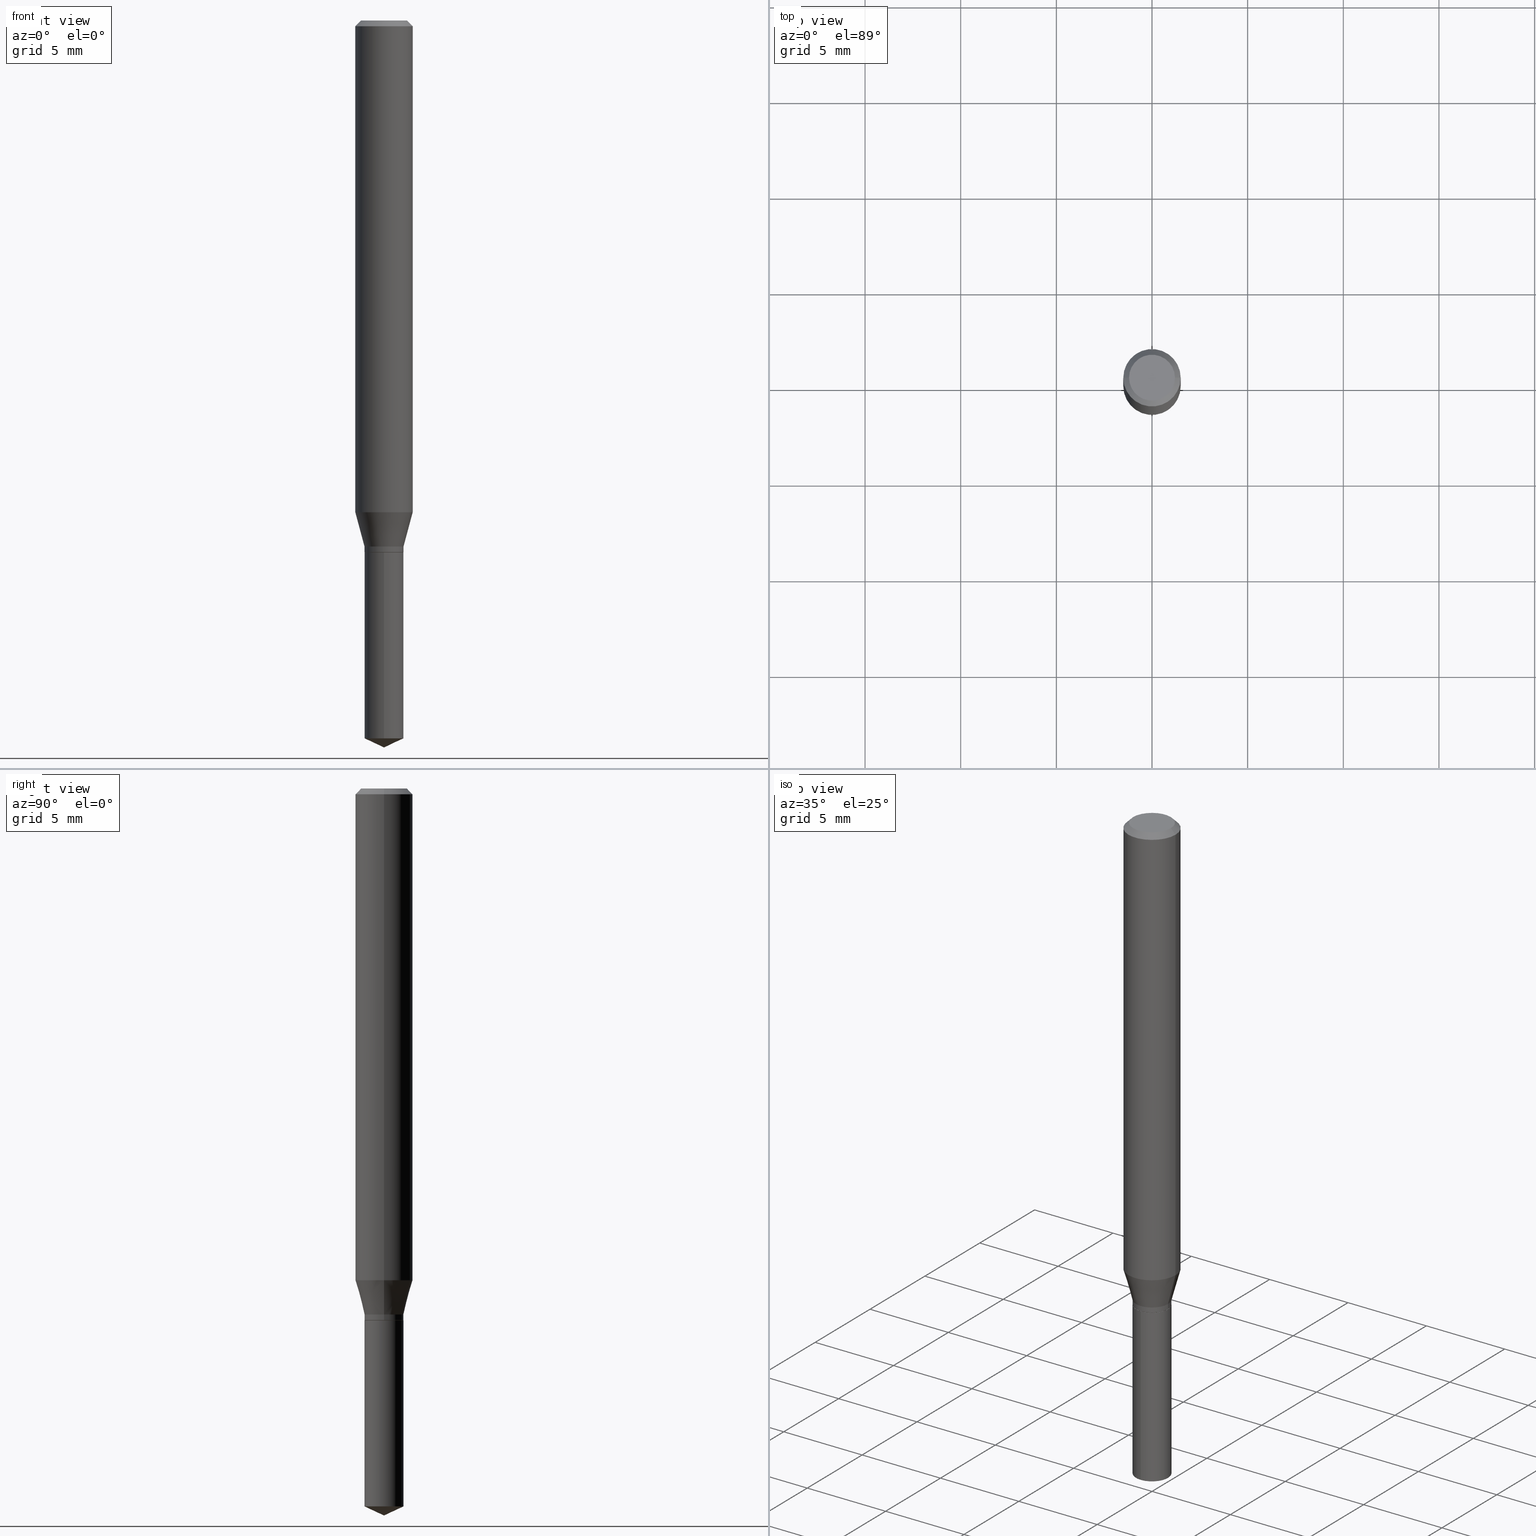
[diagram: canonical four-view strip — front | top / right | iso, engineering-drawing reading convention]
A machine part, canonical four-view strip (front | top / right | iso — engineering-drawing reading convention). The complete STEP part file that produces these views, byte-faithful:
ISO-10303-21;
HEADER;
FILE_DESCRIPTION (( 'STEP AP203' ),
    '1' );
FILE_NAME ('07605.STEP',
    '2024-04-23T23:38:56',
    ( '' ),
    ( '' ),
    'SwSTEP 2.0',
    'SolidWorks 2023',
    '' );
FILE_SCHEMA (( 'CONFIG_CONTROL_DESIGN' ));
ENDSEC;

DATA;
#1 = DIRECTION ( 'NONE',  ( -2.445458899330790108E-29, 3.491495526022433599E-15, 1.000000000000000000 ) ) ;
#2 = ORIENTED_EDGE ( 'NONE', *, *, #58, .F. ) ;
#3 = VECTOR ( 'NONE', #35, 39.37007874015748143 ) ;
#4 = VERTEX_POINT ( 'NONE', #478 ) ;
#5 = DATE_AND_TIME ( #266, #321 ) ;
#6 = DIRECTION ( 'NONE',  ( -2.445468806185136877E-29, 3.491481338843145188E-15, 1.000000000000000000 ) ) ;
#7 = CC_DESIGN_PERSON_AND_ORGANIZATION_ASSIGNMENT ( #230, #436, ( #270 ) ) ;
#8 = CARTESIAN_POINT ( 'NONE',  ( 2.676565608369631794E-29, -3.821426325363822773E-15, -1.094499999999999806 ) ) ;
#9 = CONICAL_SURFACE ( 'NONE', #459, 84.42940631927426409, 1.134464013796315562 ) ;
#10 = VECTOR ( 'NONE', #114, 39.37007874015748854 ) ;
#11 = DIRECTION ( 'NONE',  ( 1.000000000000000000, -6.982962677686266711E-15, 4.876176775795936353E-29 ) ) ;
#12 = DIRECTION ( 'NONE',  ( -2.445458899330790108E-29, 3.491495526022433205E-15, 1.000000000000000000 ) ) ;
#13 = ORIENTED_EDGE ( 'NONE', *, *, #217, .F. ) ;
#14 = PERSON_AND_ORGANIZATION ( #317, #251 ) ;
#15 = ORIENTED_EDGE ( 'NONE', *, *, #26, .F. ) ;
#16 = ORIENTED_EDGE ( 'NONE', *, *, #377, .F. ) ;
#17 =( GEOMETRIC_REPRESENTATION_CONTEXT ( 3 ) GLOBAL_UNCERTAINTY_ASSIGNED_CONTEXT ( ( #259 ) ) GLOBAL_UNIT_ASSIGNED_CONTEXT ( ( #297, #70, #376 ) ) REPRESENTATION_CONTEXT ( 'NONE', 'WORKASPACE' ) );
#18 = LINE ( 'NONE', #218, #158 ) ;
#19 = VERTEX_POINT ( 'NONE', #289 ) ;
#20 = DIRECTION ( 'NONE',  ( 1.000000000000000000, -6.982962677686266711E-15, 4.876185090822587894E-29 ) ) ;
#21 = DIMENSIONAL_EXPONENTS ( 1.000000000000000000, 0.000000000000000000, 0.000000000000000000, 0.000000000000000000, 0.000000000000000000, 0.000000000000000000, 0.000000000000000000 ) ;
#22 = CARTESIAN_POINT ( 'NONE',  ( 0.04014999999999999819, -4.059894500806808838E-15, -1.082500000000000018 ) ) ;
#23 = PERSON_AND_ORGANIZATION_ROLE ( 'classification_officer' ) ;
#24 = CARTESIAN_POINT ( 'NONE',  ( 2.852829084077163515E-16, 0.04014999999999484259, -1.477377747525077112 ) ) ;
#25 = LINE ( 'NONE', #103, #437 ) ;
#26 = EDGE_CURVE ( 'NONE', #128, #424, #334, .T. ) ;
#27 = AXIS2_PLACEMENT_3D ( 'NONE', #484, #490, #147 ) ;
#28 = DIRECTION ( 'NONE',  ( 1.000000000000000000, -6.982962677686265133E-15, 0.000000000000000000 ) ) ;
#29 = AXIS2_PLACEMENT_3D ( 'NONE', #435, #54, #252 ) ;
#30 = CARTESIAN_POINT ( 'NONE',  ( 0.05905000000000013016, -3.945598204735519774E-15, -1.011964239736947935 ) ) ;
#31 = PERSON_AND_ORGANIZATION ( #317, #251 ) ;
#32 = MANIFOLD_SOLID_BREP ( 'Body-Move/Copy2[2]', #384 ) ;
#33 = CARTESIAN_POINT ( 'NONE',  ( -9.261924752013118283E-28, 1.322368428517963298E-13, 37.87397874015748300 ) ) ;
#34 = DIRECTION ( 'NONE',  ( 0.000000000000000000, 0.000000000000000000, 1.000000000000000000 ) ) ;
#35 = DIRECTION ( 'NONE',  ( -2.445468806185136877E-29, 3.491481338843145188E-15, 1.000000000000000000 ) ) ;
#36 = LOCAL_TIME ( 19, 38, 56.00000000000000000, #402 ) ;
#37 = DIRECTION ( 'NONE',  ( -6.982962677686266711E-15, -1.000000000000000000, 3.520397390770457025E-15 ) ) ;
#38 = VERTEX_POINT ( 'NONE', #433 ) ;
#39 = CYLINDRICAL_SURFACE ( 'NONE', #257, 0.04014999999999999819 ) ;
#40 = EDGE_CURVE ( 'NONE', #322, #401, #52, .T. ) ;
#41 = CC_DESIGN_PERSON_AND_ORGANIZATION_ASSIGNMENT ( #14, #164, ( #360 ) ) ;
#42 = AXIS2_PLACEMENT_3D ( 'NONE', #348, #178, #83 ) ;
#43 = AXIS2_PLACEMENT_3D ( 'NONE', #483, #457, #80 ) ;
#44 = ORIENTED_EDGE ( 'NONE', *, *, #191, .T. ) ;
#45 = DIRECTION ( 'NONE',  ( 1.000000000000000000, -6.982962677686261189E-15, 0.000000000000000000 ) ) ;
#46 = CARTESIAN_POINT ( 'NONE',  ( 2.474726981251563190E-29, -3.533254258618144854E-15, -1.011964239736947935 ) ) ;
#47 = ORIENTED_EDGE ( 'NONE', *, *, #378, .F. ) ;
#48 = ADVANCED_FACE ( 'NONE', ( #95 ), #408, .F. ) ;
#49 = DIRECTION ( 'NONE',  ( 1.000000000000000000, -6.982962677686266711E-15, 4.876176775795936353E-29 ) ) ;
#50 = CONICAL_SURFACE ( 'NONE', #335, 0.03964999999999999775, 0.7853981633974141952 ) ;
#51 = EDGE_LOOP ( 'NONE', ( #116, #405, #206 ) ) ;
#52 = CIRCLE ( 'NONE', #29, 0.04014999999999999819 ) ;
#53 = DIRECTION ( 'NONE',  ( 1.000000000000000000, -6.982962677686261189E-15, 0.000000000000000000 ) ) ;
#54 = DIRECTION ( 'NONE',  ( -2.445468806185136597E-29, 3.491481338843145583E-15, 1.000000000000000000 ) ) ;
#55 = FACE_OUTER_BOUND ( 'NONE', #122, .T. ) ;
#56 = EDGE_CURVE ( 'NONE', #330, #38, #117, .T. ) ;
#57 = EDGE_LOOP ( 'NONE', ( #315, #197, #156, #13 ) ) ;
#58 = EDGE_CURVE ( 'NONE', #194, #424, #25, .T. ) ;
#59 = CARTESIAN_POINT ( 'NONE',  ( 0.03964999999999999775, -4.098300795534082706E-15, -1.094499999999999806 ) ) ;
#60 = CARTESIAN_POINT ( 'NONE',  ( 0.04014999999999999819, -2.803659515091035804E-16, 1.957784975482067798E-30 ) ) ;
#61 = CC_DESIGN_PERSON_AND_ORGANIZATION_ASSIGNMENT ( #31, #336, ( #292 ) ) ;
#62 = EDGE_CURVE ( 'NONE', #194, #306, #210, .T. ) ;
#63 = EDGE_LOOP ( 'NONE', ( #241, #247, #190, #232 ) ) ;
#64 = DESIGN_CONTEXT ( 'detailed design', #226, 'design' ) ;
#65 = CONICAL_SURFACE ( 'NONE', #42, 0.04014999999999999819, 0.2617993877991501850 ) ;
#66 = FACE_OUTER_BOUND ( 'NONE', #126, .T. ) ;
#67 = PRODUCT_RELATED_PRODUCT_CATEGORY ( 'detail', '', ( #360 ) ) ;
#68 = CARTESIAN_POINT ( 'NONE',  ( 2.676565608369631794E-29, -3.821426325363822773E-15, -1.094499999999999806 ) ) ;
#69 = CYLINDRICAL_SURFACE ( 'NONE', #399, 0.05905000000000006771 ) ;
#70 =( NAMED_UNIT ( * ) PLANE_ANGLE_UNIT ( ) SI_UNIT ( $, .RADIAN. ) );
#71 = FACE_OUTER_BOUND ( 'NONE', #100, .T. ) ;
#72 = AXIS2_PLACEMENT_3D ( 'NONE', #345, #386, #422 ) ;
#73 = CONICAL_SURFACE ( 'NONE', #105, 0.05905000000000000526, 0.7853981633974452814 ) ;
#74 = CC_DESIGN_APPROVAL ( #185, ( #292 ) ) ;
#75 = CYLINDRICAL_SURFACE ( 'NONE', #389, 0.04014999999999999819 ) ;
#76 = ADVANCED_BREP_SHAPE_REPRESENTATION ( '07605', ( #188, #32, #449 ), #17 ) ;
#77 = LINE ( 'NONE', #458, #299 ) ;
#78 = ADVANCED_FACE ( 'NONE', ( #249 ), #69, .T. ) ;
#79 = DIRECTION ( 'NONE',  ( -2.445458899330790108E-29, 3.491495526022433205E-15, 1.000000000000000000 ) ) ;
#80 = DIRECTION ( 'NONE',  ( -1.000000000000000000, 6.982962677686267499E-15, 0.000000000000000000 ) ) ;
#81 = AXIS2_PLACEMENT_3D ( 'NONE', #285, #367, #480 ) ;
#82 = CIRCLE ( 'NONE', #27, 0.04014999999999999819 ) ;
#83 = DIRECTION ( 'NONE',  ( 1.000000000000000000, -6.982962677686261189E-15, 0.000000000000000000 ) ) ;
#84 = LOCAL_TIME ( 19, 38, 56.00000000000000000, #209 ) ;
#85 = CARTESIAN_POINT ( 'NONE',  ( 8.265746106709734507E-48, -1.180129479067563789E-33, -3.380025165646692144E-19 ) ) ;
#86 = ORIENTED_EDGE ( 'NONE', *, *, #138, .F. ) ;
#87 = CARTESIAN_POINT ( 'NONE',  ( 2.888098660104665956E-31, -4.123439461173782728E-17, -0.01181000000000007912 ) ) ;
#88 = EDGE_CURVE ( 'NONE', #470, #104, #175, .T. ) ;
#89 = ORIENTED_EDGE ( 'NONE', *, *, #349, .T. ) ;
#90 = ORIENTED_EDGE ( 'NONE', *, *, #255, .F. ) ;
#91 = APPROVAL_DATE_TIME ( #5, #426 ) ;
#92 = VECTOR ( 'NONE', #415, 39.37007874015748854 ) ;
#93 = ORIENTED_EDGE ( 'NONE', *, *, #138, .T. ) ;
#94 = ORIENTED_EDGE ( 'NONE', *, *, #293, .F. ) ;
#95 = FACE_OUTER_BOUND ( 'NONE', #468, .T. ) ;
#96 = DIRECTION ( 'NONE',  ( 2.445458899330789267E-29, -3.491495526022433599E-15, -1.000000000000000000 ) ) ;
#97 = VECTOR ( 'NONE', #338, 39.37007874015748854 ) ;
#98 = CARTESIAN_POINT ( 'NONE',  ( 2.676565608369631794E-29, -3.821426325363822773E-15, -1.094499999999999806 ) ) ;
#99 = ADVANCED_FACE ( 'NONE', ( #66 ), #207, .T. ) ;
#100 = EDGE_LOOP ( 'NONE', ( #271, #278, #427 ) ) ;
#101 = DIRECTION ( 'NONE',  ( -1.000000000000000000, 6.982962677686265922E-15, -4.876176775795935793E-29 ) ) ;
#102 = VERTEX_POINT ( 'NONE', #22 ) ;
#103 = CARTESIAN_POINT ( 'NONE',  ( 0.05905000000000006771, -4.123439461173745257E-16, 2.879382386107503723E-30 ) ) ;
#104 = VERTEX_POINT ( 'NONE', #24 ) ;
#105 = AXIS2_PLACEMENT_3D ( 'NONE', #87, #374, #454 ) ;
#106 = APPROVAL_ROLE ( '' ) ;
#107 = DIRECTION ( 'NONE',  ( -2.445458899330790108E-29, 3.491495526022433205E-15, 1.000000000000000000 ) ) ;
#108 = CARTESIAN_POINT ( 'NONE',  ( 2.474726981251563190E-29, -3.533254258618144854E-15, -1.011964239736947935 ) ) ;
#109 = APPROVAL_DATE_TIME ( #380, #340 ) ;
#110 = CARTESIAN_POINT ( 'NONE',  ( 0.000000000000000000, 0.000000000000000000, 0.000000000000000000 ) ) ;
#111 = CARTESIAN_POINT ( 'NONE',  ( 0.000000000000000000, 0.000000000000000000, 0.000000000000000000 ) ) ;
#112 = CARTESIAN_POINT ( 'NONE',  ( 2.888098660104665956E-31, -4.123439461173782728E-17, -0.01181000000000007912 ) ) ;
#113 = LINE ( 'NONE', #192, #250 ) ;
#114 = DIRECTION ( 'NONE',  ( 6.439704144417028775E-15, 0.9063077870366519351, 0.4226182617406950559 ) ) ;
#115 = DIRECTION ( 'NONE',  ( -6.982962677686266711E-15, -1.000000000000000000, 3.402052295970439836E-15 ) ) ;
#116 = ORIENTED_EDGE ( 'NONE', *, *, #269, .F. ) ;
#117 = CIRCLE ( 'NONE', #159, 0.04014999999999999819 ) ;
#118 = VECTOR ( 'NONE', #170, 39.37007874015748143 ) ;
#119 = LINE ( 'NONE', #261, #10 ) ;
#120 = CC_DESIGN_APPROVAL ( #426, ( #270 ) ) ;
#121 = ORIENTED_EDGE ( 'NONE', *, *, #349, .F. ) ;
#122 = EDGE_LOOP ( 'NONE', ( #461, #350, #169, #358 ) ) ;
#123 = ORIENTED_EDGE ( 'NONE', *, *, #462, .T. ) ;
#124 = APPROVAL_PERSON_ORGANIZATION ( #450, #340, #442 ) ;
#125 = CARTESIAN_POINT ( 'NONE',  ( 3.612877403410558045E-29, -5.158242267861175196E-15, -1.477377747525076890 ) ) ;
#126 = EDGE_LOOP ( 'NONE', ( #473, #123, #354, #86 ) ) ;
#127 = DIRECTION ( 'NONE',  ( -2.445468806185136597E-29, 3.491481338843145583E-15, 1.000000000000000000 ) ) ;
#128 = VERTEX_POINT ( 'NONE', #193 ) ;
#129 = DATE_AND_TIME ( #469, #36 ) ;
#130 = ORIENTED_EDGE ( 'NONE', *, *, #56, .T. ) ;
#131 = CARTESIAN_POINT ( 'NONE',  ( 8.265746106709734507E-48, -1.180129479067563789E-33, -3.380025165646692144E-19 ) ) ;
#132 = ADVANCED_FACE ( 'NONE', ( #71 ), #9, .T. ) ;
#133 = CONICAL_SURFACE ( 'NONE', #410, 84.42940631927426409, 1.134464013796315562 ) ;
#134 = AXIS2_PLACEMENT_3D ( 'NONE', #108, #448, #486 ) ;
#135 = EDGE_LOOP ( 'NONE', ( #121, #229, #236, #423 ) ) ;
#136 = CC_DESIGN_SECURITY_CLASSIFICATION ( #352, ( #292 ) ) ;
#137 = DIRECTION ( 'NONE',  ( 2.438088387897960049E-29, -3.491481338843145188E-15, -1.000000000000000000 ) ) ;
#138 = EDGE_CURVE ( 'NONE', #38, #330, #395, .T. ) ;
#139 = PRODUCT_DEFINITION_SHAPE ( 'NONE', 'NONE',  #270 ) ;
#140 = EDGE_LOOP ( 'NONE', ( #202, #456, #460, #268 ) ) ;
#141 = CARTESIAN_POINT ( 'NONE',  ( 2.888098660104665956E-31, -4.123439461173782728E-17, -0.01181000000000007912 ) ) ;
#142 = DIRECTION ( 'NONE',  ( -2.445458899330790108E-29, 3.491495526022433205E-15, 1.000000000000000000 ) ) ;
#143 = DIRECTION ( 'NONE',  ( 1.000000000000000000, -6.982962677686267499E-15, 0.000000000000000000 ) ) ;
#144 = FACE_OUTER_BOUND ( 'NONE', #366, .T. ) ;
#145 = DIRECTION ( 'NONE',  ( -6.982962677686266711E-15, -1.000000000000000000, 6.804104591940879672E-15 ) ) ;
#146 = LOCAL_TIME ( 19, 38, 56.00000000000000000, #294 ) ;
#147 = DIRECTION ( 'NONE',  ( 1.000000000000000000, -6.982962677686261189E-15, 0.000000000000000000 ) ) ;
#148 = DIRECTION ( 'NONE',  ( -0.7071067811865453523, 2.468850131082234184E-15, -0.7071067811865496822 ) ) ;
#149 = VERTEX_POINT ( 'NONE', #160 ) ;
#150 = LINE ( 'NONE', #260, #152 ) ;
#151 = VERTEX_POINT ( 'NONE', #246 ) ;
#152 = VECTOR ( 'NONE', #414, 39.37007874015748143 ) ;
#153 = EDGE_LOOP ( 'NONE', ( #400, #44, #163, #15 ) ) ;
#154 = EDGE_CURVE ( 'NONE', #322, #102, #404, .T. ) ;
#155 = ORIENTED_EDGE ( 'NONE', *, *, #342, .T. ) ;
#156 = ORIENTED_EDGE ( 'NONE', *, *, #154, .T. ) ;
#157 = DIRECTION ( 'NONE',  ( 1.000000000000000000, -6.982962677686266711E-15, 4.876185090822587894E-29 ) ) ;
#158 = VECTOR ( 'NONE', #273, 39.37007874015748143 ) ;
#159 = AXIS2_PLACEMENT_3D ( 'NONE', #68, #12, #161 ) ;
#160 = CARTESIAN_POINT ( 'NONE',  ( -0.03964999999999999775, -3.537046903460831717E-15, -1.094499999999999806 ) ) ;
#161 = DIRECTION ( 'NONE',  ( -6.982962677686266711E-15, -1.000000000000000000, 3.402052295970439836E-15 ) ) ;
#162 = EDGE_CURVE ( 'NONE', #149, #434, #279, .T. ) ;
#163 = ORIENTED_EDGE ( 'NONE', *, *, #58, .T. ) ;
#164 = PERSON_AND_ORGANIZATION_ROLE ( 'design_owner' ) ;
#165 = DIRECTION ( 'NONE',  ( -2.445468806185136597E-29, 3.491481338843145583E-15, 1.000000000000000000 ) ) ;
#166 = VECTOR ( 'NONE', #298, 39.37007874015748143 ) ;
#167 = ORIENTED_EDGE ( 'NONE', *, *, #287, .T. ) ;
#168 = CARTESIAN_POINT ( 'NONE',  ( -0.04014999999999999819, 2.852829084076802118E-16, -1.974952438737344486E-30 ) ) ;
#169 = ORIENTED_EDGE ( 'NONE', *, *, #233, .T. ) ;
#170 = DIRECTION ( 'NONE',  ( -2.445468806185136877E-29, 3.491481338843145188E-15, 1.000000000000000000 ) ) ;
#171 = APPROVAL_STATUS ( 'not_yet_approved' ) ;
#172 = CLOSED_SHELL ( 'NONE', ( #328, #248, #132, #99, #369 ) ) ;
#173 = EDGE_CURVE ( 'NONE', #102, #4, #82, .T. ) ;
#174 = PERSON_AND_ORGANIZATION ( #317, #251 ) ;
#175 = CIRCLE ( 'NONE', #314, 0.04014999999999999819 ) ;
#176 = DIRECTION ( 'NONE',  ( -2.445458899330790108E-29, 3.491495526022433205E-15, 1.000000000000000000 ) ) ;
#177 = ADVANCED_FACE ( 'NONE', ( #489 ), #73, .T. ) ;
#178 = DIRECTION ( 'NONE',  ( -2.445468806185136597E-29, 3.491481338843145583E-15, 1.000000000000000000 ) ) ;
#179 = LINE ( 'NONE', #343, #166 ) ;
#180 = FACE_OUTER_BOUND ( 'NONE', #362, .T. ) ;
#181 = CIRCLE ( 'NONE', #465, 0.04014999999999999819 ) ;
#182 = CARTESIAN_POINT ( 'NONE',  ( 3.612877403410558045E-29, -5.158242267861175196E-15, -1.477377747525076890 ) ) ;
#183 = DIRECTION ( 'NONE',  ( -2.445468806185136597E-29, 3.491481338843145583E-15, 1.000000000000000000 ) ) ;
#184 = CARTESIAN_POINT ( 'NONE',  ( 2.676565608369631794E-29, -3.821426325363822773E-15, -1.094499999999999806 ) ) ;
#185 = APPROVAL ( #344, 'UNSPECIFIED' ) ;
#186 = CARTESIAN_POINT ( 'NONE',  ( -0.04724000000000000421, 3.504923541997677355E-16, -3.380025165670481712E-19 ) ) ;
#187 = DIRECTION ( 'NONE',  ( -6.328713451373374112E-15, -0.9063077870366490485, 0.4226182617407013287 ) ) ;
#188 = MANIFOLD_SOLID_BREP ( 'Body-Move/Copy2[1]', #172 ) ;
#189 = ORIENTED_EDGE ( 'NONE', *, *, #40, .F. ) ;
#190 = ORIENTED_EDGE ( 'NONE', *, *, #293, .T. ) ;
#191 = EDGE_CURVE ( 'NONE', #306, #194, #371, .T. ) ;
#192 = CARTESIAN_POINT ( 'NONE',  ( -0.04014999999999999819, -3.494245640890025145E-15, -1.082500000000000018 ) ) ;
#193 = CARTESIAN_POINT ( 'NONE',  ( -0.05905000000000000526, -1.367668841148601207E-15, -0.01181000000000007912 ) ) ;
#194 = VERTEX_POINT ( 'NONE', #30 ) ;
#195 = PLANE ( 'NONE',  #364 ) ;
#196 = AXIS2_PLACEMENT_3D ( 'NONE', #479, #137, #101 ) ;
#197 = ORIENTED_EDGE ( 'NONE', *, *, #332, .T. ) ;
#198 = CARTESIAN_POINT ( 'NONE',  ( 2.647219982695410164E-29, -3.779528549297705110E-15, -1.082500000000000018 ) ) ;
#199 = ORIENTED_EDGE ( 'NONE', *, *, #377, .T. ) ;
#200 = CARTESIAN_POINT ( 'NONE',  ( 0.05905000000000000526, -4.535783407291119586E-16, -0.01181000000000007912 ) ) ;
#201 = APPLICATION_CONTEXT ( 'configuration controlled 3d designs of mechanical parts and assemblies' ) ;
#202 = ORIENTED_EDGE ( 'NONE', *, *, #40, .T. ) ;
#203 = ADVANCED_FACE ( 'NONE', ( #216 ), #39, .T. ) ;
#204 = LINE ( 'NONE', #168, #118 ) ;
#205 = CONICAL_SURFACE ( 'NONE', #228, 0.03964999999999999775, 0.7853981633974141952 ) ;
#206 = ORIENTED_EDGE ( 'NONE', *, *, #88, .F. ) ;
#207 = CYLINDRICAL_SURFACE ( 'NONE', #81, 0.04014999999999999819 ) ;
#208 = DIRECTION ( 'NONE',  ( -6.982962677686266711E-15, -1.000000000000000000, 6.804104591940879672E-15 ) ) ;
#209 = COORDINATED_UNIVERSAL_TIME_OFFSET ( 5, 0, .BEHIND. ) ;
#210 = CIRCLE ( 'NONE', #309, 0.05905000000000013016 ) ;
#211 = EDGE_CURVE ( 'NONE', #151, #104, #119, .T. ) ;
#212 = APPROVAL_DATE_TIME ( #453, #185 ) ;
#213 = CIRCLE ( 'NONE', #398, 0.04014999999999999819 ) ;
#214 = CARTESIAN_POINT ( 'NONE',  ( -0.03964999999999999775, -3.539696130634942918E-15, -1.094499999999999806 ) ) ;
#215 = FACE_OUTER_BOUND ( 'NONE', #51, .T. ) ;
#216 = FACE_OUTER_BOUND ( 'NONE', #140, .T. ) ;
#217 = EDGE_CURVE ( 'NONE', #4, #102, #238, .T. ) ;
#218 = CARTESIAN_POINT ( 'NONE',  ( 0.05905000000000000526, -4.463468013801467941E-16, -0.01181000000000007912 ) ) ;
#219 = LINE ( 'NONE', #383, #412 ) ;
#220 = CC_DESIGN_PERSON_AND_ORGANIZATION_ASSIGNMENT ( #300, #23, ( #352 ) ) ;
#221 = AXIS2_PLACEMENT_3D ( 'NONE', #85, #303, #157 ) ;
#222 = CARTESIAN_POINT ( 'NONE',  ( 2.852829084077068851E-16, 0.04014999999999617486, -1.094500000000000028 ) ) ;
#223 = DIRECTION ( 'NONE',  ( 1.000000000000000000, -6.982962677686261189E-15, 0.000000000000000000 ) ) ;
#224 = DIRECTION ( 'NONE',  ( 1.000000000000000000, -6.982962677686266711E-15, 4.876176775795935232E-29 ) ) ;
#225 = ORIENTED_EDGE ( 'NONE', *, *, #288, .T. ) ;
#226 = APPLICATION_CONTEXT ( 'configuration controlled 3d designs of mechanical parts and assemblies' ) ;
#227 = ORIENTED_EDGE ( 'NONE', *, *, #443, .T. ) ;
#228 = AXIS2_PLACEMENT_3D ( 'NONE', #184, #231, #223 ) ;
#229 = ORIENTED_EDGE ( 'NONE', *, *, #316, .T. ) ;
#230 = PERSON_AND_ORGANIZATION ( #317, #251 ) ;
#231 = DIRECTION ( 'NONE',  ( -2.445468806185136597E-29, 3.491481338843145583E-15, 1.000000000000000000 ) ) ;
#232 = ORIENTED_EDGE ( 'NONE', *, *, #191, .F. ) ;
#233 = EDGE_CURVE ( 'NONE', #434, #322, #267, .T. ) ;
#234 = COORDINATED_UNIVERSAL_TIME_OFFSET ( 5, 0, .BEHIND. ) ;
#235 = CARTESIAN_POINT ( 'NONE',  ( -2.803659515090768085E-16, -0.04015000000000382152, -1.094499999999999806 ) ) ;
#236 = ORIENTED_EDGE ( 'NONE', *, *, #255, .T. ) ;
#237 = DIRECTION ( 'NONE',  ( 6.982962677686265922E-15, 1.000000000000000000, -3.491495526022433599E-15 ) ) ;
#238 = CIRCLE ( 'NONE', #327, 0.04014999999999999819 ) ;
#239 = MECHANICAL_CONTEXT ( 'NONE', #201, 'mechanical' ) ;
#240 = LOCAL_TIME ( 19, 38, 56.00000000000000000, #333 ) ;
#241 = ORIENTED_EDGE ( 'NONE', *, *, #342, .F. ) ;
#242 = DIRECTION ( 'NONE',  ( -2.445468806185136597E-29, 3.491481338843145583E-15, 1.000000000000000000 ) ) ;
#243 = ADVANCED_FACE ( 'NONE', ( #451 ), #75, .T. ) ;
#244 = DIRECTION ( 'NONE',  ( -2.438088387897960049E-29, 3.491481338843145188E-15, 1.000000000000000000 ) ) ;
#245 = DIRECTION ( 'NONE',  ( -2.445468806185136597E-29, 3.491481338843145583E-15, 1.000000000000000000 ) ) ;
#246 = CARTESIAN_POINT ( 'NONE',  ( 3.658651059288794515E-29, -5.223626456482161457E-15, -1.496099999999999985 ) ) ;
#247 = ORIENTED_EDGE ( 'NONE', *, *, #217, .T. ) ;
#248 = ADVANCED_FACE ( 'NONE', ( #215 ), #133, .T. ) ;
#249 = FACE_OUTER_BOUND ( 'NONE', #153, .T. ) ;
#250 = VECTOR ( 'NONE', #393, 39.37007874015748143 ) ;
#251 = ORGANIZATION ( 'UNSPECIFIED', 'UNSPECIFIED', '' ) ;
#252 = DIRECTION ( 'NONE',  ( 1.000000000000000000, -6.982962677686261189E-15, 0.000000000000000000 ) ) ;
#253 = DIRECTION ( 'NONE',  ( -2.445468806185136597E-29, 3.491481338843145583E-15, 1.000000000000000000 ) ) ;
#254 = FACE_OUTER_BOUND ( 'NONE', #63, .T. ) ;
#255 = EDGE_CURVE ( 'NONE', #424, #128, #481, .T. ) ;
#256 = CARTESIAN_POINT ( 'NONE',  ( 2.647219982695410164E-29, -3.779528549297705110E-15, -1.082500000000000018 ) ) ;
#257 = AXIS2_PLACEMENT_3D ( 'NONE', #302, #183, #224 ) ;
#258 = SHAPE_DEFINITION_REPRESENTATION ( #139, #76 ) ;
#259 = UNCERTAINTY_MEASURE_WITH_UNIT (LENGTH_MEASURE( 1.000000000000000082E-05 ), #297, 'distance_accuracy_value', 'NONE');
#260 = CARTESIAN_POINT ( 'NONE',  ( -2.803659515090768085E-16, -0.04015000000000382152, -1.094499999999999806 ) ) ;
#261 = CARTESIAN_POINT ( 'NONE',  ( 3.658672935554494692E-29, -5.223595400746700193E-15, -1.496099999999999985 ) ) ;
#262 = DIRECTION ( 'NONE',  ( -2.445468806185136597E-29, 3.491481338843145583E-15, 1.000000000000000000 ) ) ;
#263 = CARTESIAN_POINT ( 'NONE',  ( 2.675342873966538993E-29, -3.819680584694400481E-15, -1.093999999999999861 ) ) ;
#264 = ORIENTED_EDGE ( 'NONE', *, *, #62, .T. ) ;
#265 = AXIS2_PLACEMENT_3D ( 'NONE', #397, #245, #440 ) ;
#266 = CALENDAR_DATE ( 2024, 23, 4 ) ;
#267 = LINE ( 'NONE', #347, #92 ) ;
#268 = ORIENTED_EDGE ( 'NONE', *, *, #154, .F. ) ;
#269 = EDGE_CURVE ( 'NONE', #151, #470, #219, .T. ) ;
#270 = PRODUCT_DEFINITION ( 'UNKNOWN', '', #292, #64 ) ;
#271 = ORIENTED_EDGE ( 'NONE', *, *, #211, .F. ) ;
#272 = AXIS2_PLACEMENT_3D ( 'NONE', #466, #127, #49 ) ;
#273 = DIRECTION ( 'NONE',  ( 0.7071067811865453523, -7.319954787623248157E-15, -0.7071067811865496822 ) ) ;
#274 = CARTESIAN_POINT ( 'NONE',  ( 0.000000000000000000, 0.000000000000000000, 0.000000000000000000 ) ) ;
#275 = DIRECTION ( 'NONE',  ( -2.445458899330790108E-29, 3.491495526022433205E-15, 1.000000000000000000 ) ) ;
#276 = VERTEX_POINT ( 'NONE', #186 ) ;
#277 = FACE_OUTER_BOUND ( 'NONE', #388, .T. ) ;
#278 = ORIENTED_EDGE ( 'NONE', *, *, #269, .T. ) ;
#279 = CIRCLE ( 'NONE', #72, 0.03964999999999999775 ) ;
#280 = ADVANCED_FACE ( 'NONE', ( #144 ), #65, .T. ) ;
#281 = AXIS2_PLACEMENT_3D ( 'NONE', #198, #253, #324 ) ;
#282 = APPROVAL_STATUS ( 'not_yet_approved' ) ;
#283 = ORIENTED_EDGE ( 'NONE', *, *, #26, .T. ) ;
#284 = DIRECTION ( 'NONE',  ( -2.445468806185136597E-29, 3.491481338843145583E-15, 1.000000000000000000 ) ) ;
#285 = CARTESIAN_POINT ( 'NONE',  ( 2.676565608369631794E-29, -3.821426325363822773E-15, -1.094499999999999806 ) ) ;
#286 = ORIENTED_EDGE ( 'NONE', *, *, #316, .F. ) ;
#287 = EDGE_CURVE ( 'NONE', #276, #128, #296, .T. ) ;
#288 = EDGE_CURVE ( 'NONE', #104, #38, #305, .T. ) ;
#289 = CARTESIAN_POINT ( 'NONE',  ( 0.04724000000000000421, -3.852183633974369838E-16, -3.380025165621689721E-19 ) ) ;
#290 = DIRECTION ( 'NONE',  ( -6.982962677686266711E-15, -1.000000000000000000, 3.520397390770457025E-15 ) ) ;
#291 = AXIS2_PLACEMENT_3D ( 'NONE', #8, #275, #115 ) ;
#292 = PRODUCT_DEFINITION_FORMATION_WITH_SPECIFIED_SOURCE ( 'ANY', '', #360, .NOT_KNOWN. ) ;
#293 = EDGE_CURVE ( 'NONE', #102, #194, #179, .T. ) ;
#294 = COORDINATED_UNIVERSAL_TIME_OFFSET ( 5, 0, .BEHIND. ) ;
#295 = PERSON_AND_ORGANIZATION ( #317, #251 ) ;
#296 = LINE ( 'NONE', #444, #406 ) ;
#297 =( CONVERSION_BASED_UNIT ( 'INCH', #382 ) LENGTH_UNIT ( ) NAMED_UNIT ( #21 ) );
#298 = DIRECTION ( 'NONE',  ( 0.2588190451025214611, 1.565188264969620982E-15, 0.9659258262890679791 ) ) ;
#299 = VECTOR ( 'NONE', #6, 39.37007874015748143 ) ;
#300 = PERSON_AND_ORGANIZATION ( #317, #251 ) ;
#301 = EDGE_CURVE ( 'NONE', #470, #330, #150, .T. ) ;
#302 = CARTESIAN_POINT ( 'NONE',  ( 0.000000000000000000, 0.000000000000000000, 0.000000000000000000 ) ) ;
#303 = DIRECTION ( 'NONE',  ( -2.445468806185136597E-29, 3.491481338843145583E-15, 1.000000000000000000 ) ) ;
#304 = CC_DESIGN_DATE_AND_TIME_ASSIGNMENT ( #129, #438, ( #270 ) ) ;
#305 = LINE ( 'NONE', #222, #474 ) ;
#306 = VERTEX_POINT ( 'NONE', #308 ) ;
#307 = CARTESIAN_POINT ( 'NONE',  ( -2.803659515090673914E-16, -0.04015000000000516073, -1.477377747525076446 ) ) ;
#308 = CARTESIAN_POINT ( 'NONE',  ( -0.05905000000000013016, -3.113678773151804967E-15, -1.011964239736947935 ) ) ;
#309 = AXIS2_PLACEMENT_3D ( 'NONE', #46, #482, #28 ) ;
#310 = EDGE_LOOP ( 'NONE', ( #130, #93 ) ) ;
#311 = AXIS2_PLACEMENT_3D ( 'NONE', #131, #242, #20 ) ;
#312 = CC_DESIGN_APPROVAL ( #340, ( #352 ) ) ;
#313 = EDGE_CURVE ( 'NONE', #306, #128, #77, .T. ) ;
#314 = AXIS2_PLACEMENT_3D ( 'NONE', #125, #176, #208 ) ;
#315 = ORIENTED_EDGE ( 'NONE', *, *, #439, .F. ) ;
#316 = EDGE_CURVE ( 'NONE', #19, #424, #18, .T. ) ;
#317 = PERSON ( 'UNSPECIFIED', 'UNSPECIFIED', 'UNSPECIFIED', ('UNSPECIFIED'), ('UNSPECIFIED'), ('UNSPECIFIED') ) ;
#318 = ADVANCED_FACE ( 'NONE', ( #425 ), #205, .T. ) ;
#319 = EDGE_LOOP ( 'NONE', ( #477, #89 ) ) ;
#320 = CYLINDRICAL_SURFACE ( 'NONE', #272, 0.05905000000000006771 ) ;
#321 = LOCAL_TIME ( 19, 38, 56.00000000000000000, #234 ) ;
#322 = VERTEX_POINT ( 'NONE', #455 ) ;
#323 = ORIENTED_EDGE ( 'NONE', *, *, #313, .T. ) ;
#324 = DIRECTION ( 'NONE',  ( 1.000000000000000000, -6.982962677686261189E-15, 0.000000000000000000 ) ) ;
#325 = APPLICATION_PROTOCOL_DEFINITION ( 'international standard', 'config_control_design', 1994, #226 ) ;
#326 = ORIENTED_EDGE ( 'NONE', *, *, #62, .F. ) ;
#327 = AXIS2_PLACEMENT_3D ( 'NONE', #256, #262, #411 ) ;
#328 = ADVANCED_FACE ( 'NONE', ( #277 ), #452, .T. ) ;
#329 = ORIENTED_EDGE ( 'NONE', *, *, #301, .F. ) ;
#330 = VERTEX_POINT ( 'NONE', #235 ) ;
#331 = LINE ( 'NONE', #214, #97 ) ;
#332 = EDGE_CURVE ( 'NONE', #401, #322, #181, .T. ) ;
#333 = COORDINATED_UNIVERSAL_TIME_OFFSET ( 5, 0, .BEHIND. ) ;
#334 = CIRCLE ( 'NONE', #385, 0.05905000000000000526 ) ;
#335 = AXIS2_PLACEMENT_3D ( 'NONE', #403, #284, #53 ) ;
#336 = PERSON_AND_ORGANIZATION_ROLE ( 'creator' ) ;
#337 = AXIS2_PLACEMENT_3D ( 'NONE', #98, #244, #356 ) ;
#338 = DIRECTION ( 'NONE',  ( -0.7071067811865232589, 7.493145998870265808E-15, 0.7071067811865715536 ) ) ;
#339 = DIRECTION ( 'NONE',  ( -2.445468806185136877E-29, 3.491481338843145188E-15, 1.000000000000000000 ) ) ;
#340 = APPROVAL ( #171, 'UNSPECIFIED' ) ;
#341 = CALENDAR_DATE ( 2024, 23, 4 ) ;
#342 = EDGE_CURVE ( 'NONE', #4, #306, #113, .T. ) ;
#343 = CARTESIAN_POINT ( 'NONE',  ( 0.04014999999999999819, -4.059894500806808838E-15, -1.082500000000000018 ) ) ;
#344 = APPROVAL_STATUS ( 'not_yet_approved' ) ;
#345 = CARTESIAN_POINT ( 'NONE',  ( 2.676565608369631794E-29, -3.821426325363822773E-15, -1.094499999999999806 ) ) ;
#346 = CIRCLE ( 'NONE', #311, 0.04724000000000000421 ) ;
#347 = CARTESIAN_POINT ( 'NONE',  ( 0.03964999999999999775, -4.098300795534082706E-15, -1.094499999999999806 ) ) ;
#348 = CARTESIAN_POINT ( 'NONE',  ( 2.647219982695410164E-29, -3.779528549297705110E-15, -1.082500000000000018 ) ) ;
#349 = EDGE_CURVE ( 'NONE', #19, #276, #447, .T. ) ;
#350 = ORIENTED_EDGE ( 'NONE', *, *, #162, .T. ) ;
#351 = AXIS2_PLACEMENT_3D ( 'NONE', #112, #417, #143 ) ;
#352 = SECURITY_CLASSIFICATION ( '', '', #487 ) ;
#353 = DIRECTION ( 'NONE',  ( 1.000000000000000000, 0.000000000000000000, 0.000000000000000000 ) ) ;
#354 = ORIENTED_EDGE ( 'NONE', *, *, #301, .T. ) ;
#355 = DIRECTION ( 'NONE',  ( -6.982962677686266711E-15, -1.000000000000000000, 3.402052295970439836E-15 ) ) ;
#356 = DIRECTION ( 'NONE',  ( 1.000000000000000000, -6.982962677686265922E-15, 4.876176775795935793E-29 ) ) ;
#357 = CARTESIAN_POINT ( 'NONE',  ( 2.676565608369631794E-29, -3.821426325363822773E-15, -1.094499999999999806 ) ) ;
#358 = ORIENTED_EDGE ( 'NONE', *, *, #332, .F. ) ;
#359 = ORIENTED_EDGE ( 'NONE', *, *, #162, .F. ) ;
#360 = PRODUCT ( '07605', '07605', '', ( #239 ) ) ;
#361 = ADVANCED_FACE ( 'NONE', ( #180 ), #320, .T. ) ;
#362 = EDGE_LOOP ( 'NONE', ( #264, #323, #90, #2 ) ) ;
#363 = FACE_OUTER_BOUND ( 'NONE', #319, .T. ) ;
#364 = AXIS2_PLACEMENT_3D ( 'NONE', #357, #96, #237 ) ;
#365 = APPROVAL_PERSON_ORGANIZATION ( #472, #426, #432 ) ;
#366 = EDGE_LOOP ( 'NONE', ( #428, #155, #326, #94 ) ) ;
#367 = DIRECTION ( 'NONE',  ( -2.445458899330790108E-29, 3.491495526022433205E-15, 1.000000000000000000 ) ) ;
#368 = PERSON_AND_ORGANIZATION_ROLE ( 'design_supplier' ) ;
#369 = ADVANCED_FACE ( 'NONE', ( #429 ), #195, .F. ) ;
#370 = AXIS2_PLACEMENT_3D ( 'NONE', #441, #107, #355 ) ;
#371 = CIRCLE ( 'NONE', #134, 0.05905000000000013016 ) ;
#372 = CALENDAR_DATE ( 2024, 23, 4 ) ;
#373 =( LENGTH_UNIT ( ) NAMED_UNIT ( * ) SI_UNIT ( $, .METRE. ) );
#374 = DIRECTION ( 'NONE',  ( 2.445468806185136597E-29, -3.491481338843145583E-15, -1.000000000000000000 ) ) ;
#375 = CALENDAR_DATE ( 2024, 23, 4 ) ;
#376 =( NAMED_UNIT ( * ) SI_UNIT ( $, .STERADIAN. ) SOLID_ANGLE_UNIT ( ) );
#377 = EDGE_CURVE ( 'NONE', #434, #149, #396, .T. ) ;
#378 = EDGE_CURVE ( 'NONE', #276, #19, #346, .T. ) ;
#379 = DIRECTION ( 'NONE',  ( 1.000000000000000000, -6.982962677686266711E-15, 4.876176775795935232E-29 ) ) ;
#380 = DATE_AND_TIME ( #372, #240 ) ;
#381 = ADVANCED_FACE ( 'NONE', ( #254 ), #418, .T. ) ;
#382 = LENGTH_MEASURE_WITH_UNIT ( LENGTH_MEASURE( 0.02539999999999999897 ), #373 );
#383 = CARTESIAN_POINT ( 'NONE',  ( 3.658651059288795076E-29, -5.223626456482161457E-15, -1.496099999999999985 ) ) ;
#384 = CLOSED_SHELL ( 'NONE', ( #318, #446, #361, #280, #203, #243, #381, #78, #177, #430, #48, #416 ) ) ;
#385 = AXIS2_PLACEMENT_3D ( 'NONE', #141, #165, #431 ) ;
#386 = DIRECTION ( 'NONE',  ( -2.445468806185136597E-29, 3.491481338843145583E-15, 1.000000000000000000 ) ) ;
#387 = DIRECTION ( 'NONE',  ( -2.445468806185136597E-29, 3.491481338843145583E-15, 1.000000000000000000 ) ) ;
#388 = EDGE_LOOP ( 'NONE', ( #421, #225, #390, #329 ) ) ;
#389 = AXIS2_PLACEMENT_3D ( 'NONE', #110, #387, #379 ) ;
#390 = ORIENTED_EDGE ( 'NONE', *, *, #56, .F. ) ;
#391 = DIRECTION ( 'NONE',  ( -2.445468806185136597E-29, 3.491481338843145583E-15, 1.000000000000000000 ) ) ;
#392 = ORIENTED_EDGE ( 'NONE', *, *, #233, .F. ) ;
#393 = DIRECTION ( 'NONE',  ( -0.2588190451025214611, 5.211531920934550253E-15, 0.9659258262890679791 ) ) ;
#394 = EDGE_LOOP ( 'NONE', ( #199, #227, #189, #392 ) ) ;
#395 = CIRCLE ( 'NONE', #370, 0.04014999999999999819 ) ;
#396 = CIRCLE ( 'NONE', #265, 0.03964999999999999775 ) ;
#397 = CARTESIAN_POINT ( 'NONE',  ( 2.676565608369631794E-29, -3.821426325363822773E-15, -1.094499999999999806 ) ) ;
#398 = AXIS2_PLACEMENT_3D ( 'NONE', #182, #409, #145 ) ;
#399 = AXIS2_PLACEMENT_3D ( 'NONE', #274, #407, #11 ) ;
#400 = ORIENTED_EDGE ( 'NONE', *, *, #313, .F. ) ;
#401 = VERTEX_POINT ( 'NONE', #471 ) ;
#402 = COORDINATED_UNIVERSAL_TIME_OFFSET ( 5, 0, .BEHIND. ) ;
#403 = CARTESIAN_POINT ( 'NONE',  ( 2.676565608369631794E-29, -3.821426325363822773E-15, -1.094499999999999806 ) ) ;
#404 = LINE ( 'NONE', #60, #3 ) ;
#405 = ORIENTED_EDGE ( 'NONE', *, *, #211, .T. ) ;
#406 = VECTOR ( 'NONE', #148, 39.37007874015748143 ) ;
#407 = DIRECTION ( 'NONE',  ( -2.445468806185136597E-29, 3.491481338843145583E-15, 1.000000000000000000 ) ) ;
#408 = PLANE ( 'NONE',  #337 ) ;
#409 = DIRECTION ( 'NONE',  ( -2.445458899330790108E-29, 3.491495526022433205E-15, 1.000000000000000000 ) ) ;
#410 = AXIS2_PLACEMENT_3D ( 'NONE', #33, #79, #37 ) ;
#411 = DIRECTION ( 'NONE',  ( 1.000000000000000000, -6.982962677686261189E-15, 0.000000000000000000 ) ) ;
#412 = VECTOR ( 'NONE', #187, 39.37007874015748143 ) ;
#413 = FACE_OUTER_BOUND ( 'NONE', #135, .T. ) ;
#414 = DIRECTION ( 'NONE',  ( -2.445458899330790108E-29, 3.491495526022433599E-15, 1.000000000000000000 ) ) ;
#415 = DIRECTION ( 'NONE',  ( 0.7071067811865232589, -2.468850131082003836E-15, 0.7071067811865715536 ) ) ;
#416 = ADVANCED_FACE ( 'NONE', ( #55 ), #50, .T. ) ;
#417 = DIRECTION ( 'NONE',  ( -2.445468806185136597E-29, 3.491481338843145583E-15, 1.000000000000000000 ) ) ;
#418 = CONICAL_SURFACE ( 'NONE', #281, 0.04014999999999999819, 0.2617993877991501850 ) ;
#419 = CC_DESIGN_PERSON_AND_ORGANIZATION_ASSIGNMENT ( #295, #368, ( #292 ) ) ;
#420 = APPROVAL_PERSON_ORGANIZATION ( #174, #185, #106 ) ;
#421 = ORIENTED_EDGE ( 'NONE', *, *, #88, .T. ) ;
#422 = DIRECTION ( 'NONE',  ( 1.000000000000000000, -6.982962677686261189E-15, 0.000000000000000000 ) ) ;
#423 = ORIENTED_EDGE ( 'NONE', *, *, #287, .F. ) ;
#424 = VERTEX_POINT ( 'NONE', #200 ) ;
#425 = FACE_OUTER_BOUND ( 'NONE', #394, .T. ) ;
#426 = APPROVAL ( #282, 'UNSPECIFIED' ) ;
#427 = ORIENTED_EDGE ( 'NONE', *, *, #462, .F. ) ;
#428 = ORIENTED_EDGE ( 'NONE', *, *, #173, .T. ) ;
#429 = FACE_OUTER_BOUND ( 'NONE', #310, .T. ) ;
#430 = ADVANCED_FACE ( 'NONE', ( #363 ), #475, .F. ) ;
#431 = DIRECTION ( 'NONE',  ( 1.000000000000000000, -6.982962677686267499E-15, 0.000000000000000000 ) ) ;
#432 = APPROVAL_ROLE ( '' ) ;
#433 = CARTESIAN_POINT ( 'NONE',  ( 2.852829084077163515E-16, 0.04014999999999617486, -1.094500000000000028 ) ) ;
#434 = VERTEX_POINT ( 'NONE', #59 ) ;
#435 = CARTESIAN_POINT ( 'NONE',  ( 2.675342873966538993E-29, -3.819680584694400481E-15, -1.093999999999999861 ) ) ;
#436 = PERSON_AND_ORGANIZATION_ROLE ( 'creator' ) ;
#437 = VECTOR ( 'NONE', #339, 39.37007874015748143 ) ;
#438 = DATE_TIME_ROLE ( 'creation_date' ) ;
#439 = EDGE_CURVE ( 'NONE', #401, #4, #204, .T. ) ;
#440 = DIRECTION ( 'NONE',  ( 1.000000000000000000, -6.982962677686261189E-15, 0.000000000000000000 ) ) ;
#441 = CARTESIAN_POINT ( 'NONE',  ( 2.676565608369631794E-29, -3.821426325363822773E-15, -1.094499999999999806 ) ) ;
#442 = APPROVAL_ROLE ( '' ) ;
#443 = EDGE_CURVE ( 'NONE', #149, #401, #331, .T. ) ;
#444 = CARTESIAN_POINT ( 'NONE',  ( -0.05905000000000000526, 3.711095515056362547E-16, -0.01181000000000007912 ) ) ;
#445 = DATE_TIME_ROLE ( 'classification_date' ) ;
#446 = ADVANCED_FACE ( 'NONE', ( #413 ), #476, .T. ) ;
#447 = CIRCLE ( 'NONE', #221, 0.04724000000000000421 ) ;
#448 = DIRECTION ( 'NONE',  ( -2.445468806185136597E-29, 3.491481338843145583E-15, 1.000000000000000000 ) ) ;
#449 = AXIS2_PLACEMENT_3D ( 'NONE', #111, #34, #353 ) ;
#450 = PERSON_AND_ORGANIZATION ( #317, #251 ) ;
#451 = FACE_OUTER_BOUND ( 'NONE', #57, .T. ) ;
#452 = CYLINDRICAL_SURFACE ( 'NONE', #291, 0.04014999999999999819 ) ;
#453 = DATE_AND_TIME ( #375, #146 ) ;
#454 = DIRECTION ( 'NONE',  ( -1.000000000000000000, 6.982962677686267499E-15, 0.000000000000000000 ) ) ;
#455 = CARTESIAN_POINT ( 'NONE',  ( 0.04014999999999999819, -4.100046536203504209E-15, -1.093999999999999861 ) ) ;
#456 = ORIENTED_EDGE ( 'NONE', *, *, #439, .T. ) ;
#457 = DIRECTION ( 'NONE',  ( 2.445468806185136597E-29, -3.491481338843145583E-15, -1.000000000000000000 ) ) ;
#458 = CARTESIAN_POINT ( 'NONE',  ( -0.05905000000000006771, 4.195754854663396409E-16, -2.904631170795525045E-30 ) ) ;
#459 = AXIS2_PLACEMENT_3D ( 'NONE', #467, #142, #290 ) ;
#460 = ORIENTED_EDGE ( 'NONE', *, *, #173, .F. ) ;
#461 = ORIENTED_EDGE ( 'NONE', *, *, #443, .F. ) ;
#462 = EDGE_CURVE ( 'NONE', #104, #470, #213, .T. ) ;
#463 = EDGE_LOOP ( 'NONE', ( #286, #47, #167, #283 ) ) ;
#464 = CC_DESIGN_DATE_AND_TIME_ASSIGNMENT ( #485, #445, ( #352 ) ) ;
#465 = AXIS2_PLACEMENT_3D ( 'NONE', #263, #391, #45 ) ;
#466 = CARTESIAN_POINT ( 'NONE',  ( 0.000000000000000000, 0.000000000000000000, 0.000000000000000000 ) ) ;
#467 = CARTESIAN_POINT ( 'NONE',  ( -9.261924752013118283E-28, 1.322368428517963298E-13, 37.87397874015748300 ) ) ;
#468 = EDGE_LOOP ( 'NONE', ( #16, #359 ) ) ;
#469 = CALENDAR_DATE ( 2024, 23, 4 ) ;
#470 = VERTEX_POINT ( 'NONE', #307 ) ;
#471 = CARTESIAN_POINT ( 'NONE',  ( -0.04014999999999999819, -3.514321658588372830E-15, -1.093999999999999861 ) ) ;
#472 = PERSON_AND_ORGANIZATION ( #317, #251 ) ;
#473 = ORIENTED_EDGE ( 'NONE', *, *, #288, .F. ) ;
#474 = VECTOR ( 'NONE', #1, 39.37007874015748143 ) ;
#475 = PLANE ( 'NONE',  #196 ) ;
#476 = CONICAL_SURFACE ( 'NONE', #43, 0.05905000000000000526, 0.7853981633974452814 ) ;
#477 = ORIENTED_EDGE ( 'NONE', *, *, #378, .T. ) ;
#478 = CARTESIAN_POINT ( 'NONE',  ( -0.04014999999999999819, -3.514321658588372830E-15, -1.082500000000000018 ) ) ;
#479 = CARTESIAN_POINT ( 'NONE',  ( 4.132873053354867254E-48, -5.900647395337818946E-34, -1.690012582823346072E-19 ) ) ;
#480 = DIRECTION ( 'NONE',  ( -6.982962677686266711E-15, -1.000000000000000000, 3.402052295970439836E-15 ) ) ;
#481 = CIRCLE ( 'NONE', #351, 0.05905000000000000526 ) ;
#482 = DIRECTION ( 'NONE',  ( -2.445468806185136597E-29, 3.491481338843145583E-15, 1.000000000000000000 ) ) ;
#483 = CARTESIAN_POINT ( 'NONE',  ( 2.888098660104665956E-31, -4.123439461173782728E-17, -0.01181000000000007912 ) ) ;
#484 = CARTESIAN_POINT ( 'NONE',  ( 2.647219982695410164E-29, -3.779528549297705110E-15, -1.082500000000000018 ) ) ;
#485 = DATE_AND_TIME ( #341, #84 ) ;
#486 = DIRECTION ( 'NONE',  ( 1.000000000000000000, -6.982962677686265133E-15, 0.000000000000000000 ) ) ;
#487 = SECURITY_CLASSIFICATION_LEVEL ( 'unclassified' ) ;
#488 = APPLICATION_PROTOCOL_DEFINITION ( 'international standard', 'config_control_design', 1994, #201 ) ;
#489 = FACE_OUTER_BOUND ( 'NONE', #463, .T. ) ;
#490 = DIRECTION ( 'NONE',  ( -2.445468806185136597E-29, 3.491481338843145583E-15, 1.000000000000000000 ) ) ;
ENDSEC;
END-ISO-10303-21;
